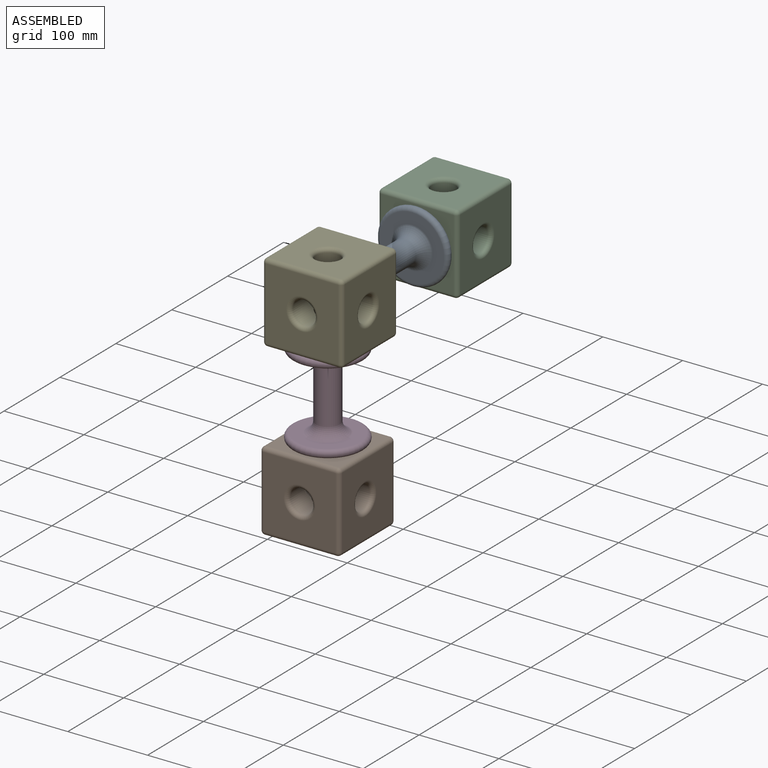
[diagram: assembled view]
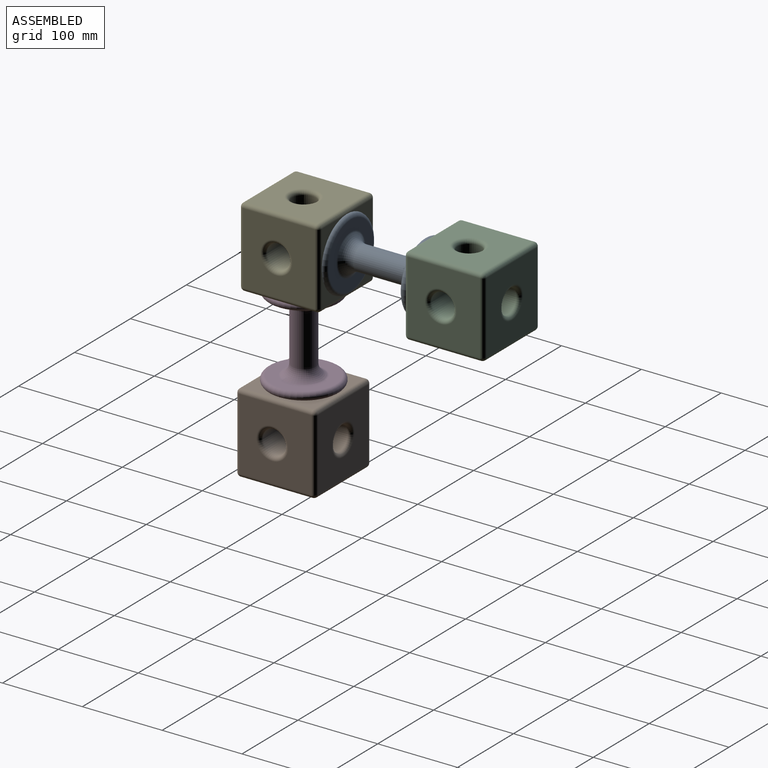
[diagram: assembled view, second angle]
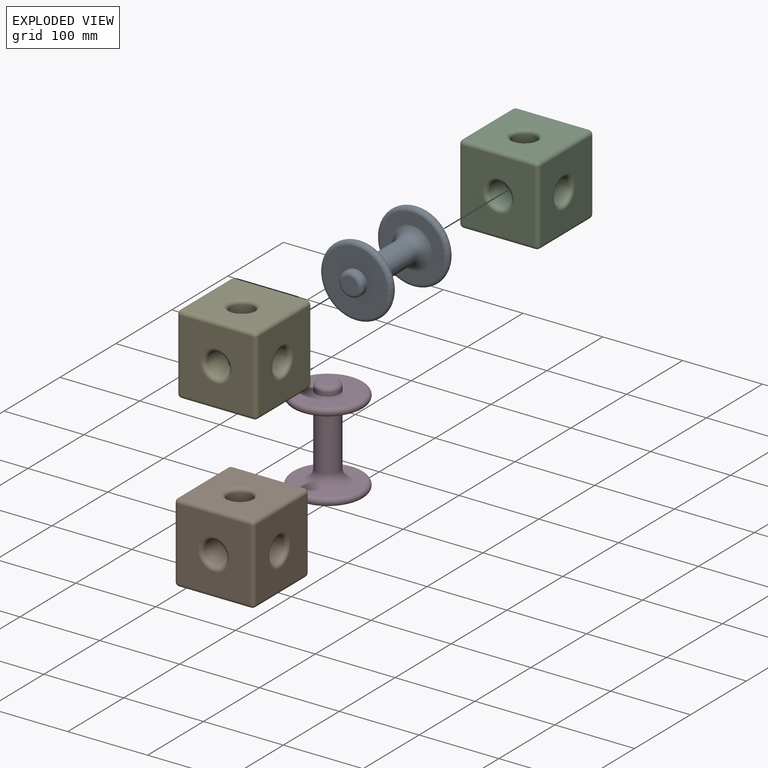
[diagram: exploded view]
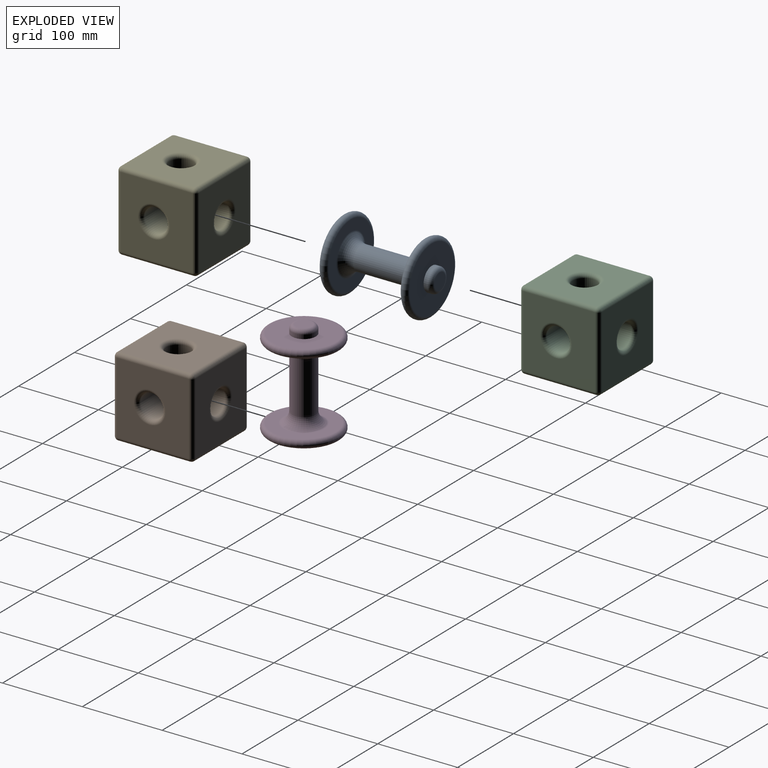
[diagram: exploded view, second angle]
ASSEMBLY  parts=5 mates=4
PART A: 19 faces, bbox 131.6x97.4x97.4 mm
  f0: plane 80x80mm, normal (-1,0,0), area 2912.2mm2, adj f6,f9
  f1: torus R=29.98mm, axis (1,0,0), area 2040.6mm2, adj f6,f7
  f2: cylinder r=15mm len=61.32mm, axis (1,0,0), area 5778.9mm2, adj f7,f16
  f3: plane 20x20mm, normal (1,0,0), area 314.2mm2, adj f8
  f4: cylinder r=15mm len=30mm, axis (1,0,0), area 471.2mm2, adj f5,f8
  f5: plane 80x80mm, normal (1,0,0), area 4319.7mm2, adj f4,f9
  f6: torus R=25.94mm, axis (-1,0,0), area 325mm2, adj f0,f1
  f7: torus R=10mm, axis (-1,0,0), area 23.1mm2, adj f1,f2
  f8: torus R=10mm, axis (-1,0,0), area 650.6mm2, adj f3,f4
  f9: torus R=40mm, axis (1,0,0), area 4262mm2, adj f0,f5
  f10: plane 80x80mm, normal (1,0,0), area 2912.2mm2, adj f15,f18
  f11: torus R=29.98mm, axis (-1,0,0), area 2040.6mm2, adj f15,f16
  f12: plane 20x20mm, normal (-1,0,0), area 314.2mm2, adj f17
  f13: cylinder r=15mm len=30mm, axis (-1,0,0), area 471.2mm2, adj f14,f17
  f14: plane 80x80mm, normal (-1,0,0), area 4319.7mm2, adj f13,f18
  f15: torus R=25.94mm, axis (1,0,0), area 325mm2, adj f10,f11
  f16: torus R=10mm, axis (1,0,0), area 23.1mm2, adj f2,f11
  f17: torus R=10mm, axis (1,0,0), area 650.6mm2, adj f12,f13
  f18: torus R=40mm, axis (-1,0,0), area 4262mm2, adj f10,f14
PART B: 38 faces, bbox 100x100x100 mm
  f0: cylinder r=15mm len=30.8mm, axis (0,-1,0), area 2628.2mm2, adj f8,f9,f10,f11,f14
  f1: plane 90x90mm, normal (1,0,0), area 6843.4mm2, adj f12,f24,f29,f32,f35
  f2: plane 90x90mm, normal (0,0,1), area 6843.4mm2, adj f21,f30,f31,f35,f36
  f3: plane 90x90mm, normal (-1,0,0), area 6843.4mm2, adj f13,f16,f20,f21,f22
  f4: plane 90x90mm, normal (0,0,-1), area 6843.4mm2, adj f16,f19,f23,f24,f37
  f5: plane 90x90mm, normal (0,-1,0), area 6843.4mm2, adj f14,f19,f20,f29,f30
  f6: plane 90x90mm, normal (0,1,0), area 6843.4mm2, adj f15,f22,f23,f31,f32
  f7: cylinder r=15mm len=38mm, axis (0,-1,0), area 3307.2mm2, adj f8,f9,f10,f11,f15
  f8: cylinder r=15mm len=34.74mm, axis (0,0,1), area 2968.8mm2, adj f0,f7,f10,f11,f36
  f9: cylinder r=15mm len=34.74mm, axis (0,0,1), area 2968.8mm2, adj f0,f7,f10,f11,f37
  f10: cylinder r=15mm len=34.74mm, axis (1,0,0), area 2968.8mm2, adj f0,f7,f8,f9,f12
  f11: cylinder r=15mm len=34.74mm, axis (1,0,0), area 2968.8mm2, adj f0,f7,f8,f9,f13
  f12: torus R=20mm, axis (1,0,0), area 829.9mm2, adj f1,f10
  f13: torus R=20mm, axis (1,0,0), area 829.9mm2, adj f3,f11
  f14: torus R=20mm, axis (0,-1,0), area 829.9mm2, adj f0,f5
  f15: torus R=20mm, axis (0,-1,0), area 829.9mm2, adj f6,f7
  f16: cylinder r=5mm len=90mm, axis (0,-1,0), area 706.9mm2, adj f3,f4,f17,f18
  f17: sphere r=5mm, area 39.3mm2, adj f16,f19,f20
  f18: sphere r=5mm, area 39.3mm2, adj f16,f22,f23
  f19: cylinder r=5mm len=90mm, axis (-1,0,0), area 706.9mm2, adj f4,f5,f17,f25
  f20: cylinder r=5mm len=90mm, axis (0,0,1), area 706.9mm2, adj f3,f5,f17,f26
  f21: cylinder r=5mm len=90mm, axis (0,1,0), area 706.9mm2, adj f2,f3,f26,f27
  f22: cylinder r=5mm len=90mm, axis (0,0,-1), area 706.9mm2, adj f3,f6,f18,f27
  f23: cylinder r=5mm len=90mm, axis (1,0,0), area 706.9mm2, adj f4,f6,f18,f28
  f24: cylinder r=5mm len=90mm, axis (0,1,0), area 706.9mm2, adj f1,f4,f25,f28
  f25: sphere r=5mm, area 39.3mm2, adj f19,f24,f29
  f26: sphere r=5mm, area 39.3mm2, adj f20,f21,f30
  f27: sphere r=5mm, area 39.3mm2, adj f21,f22,f31
  f28: sphere r=5mm, area 39.3mm2, adj f23,f24,f32
  f29: cylinder r=5mm len=90mm, axis (0,0,-1), area 706.9mm2, adj f1,f5,f25,f33
  f30: cylinder r=5mm len=90mm, axis (1,0,0), area 706.9mm2, adj f2,f5,f26,f33
  f31: cylinder r=5mm len=90mm, axis (-1,0,0), area 706.9mm2, adj f2,f6,f27,f34
  f32: cylinder r=5mm len=90mm, axis (0,0,1), area 706.9mm2, adj f1,f6,f28,f34
  f33: sphere r=5mm, area 39.3mm2, adj f29,f30,f35
  f34: sphere r=5mm, area 39.3mm2, adj f31,f32,f35
  f35: cylinder r=5mm len=90mm, axis (0,-1,0), area 706.9mm2, adj f1,f2,f33,f34
  f36: torus R=20mm, axis (0,0,-1), area 829.9mm2, adj f2,f8
  f37: torus R=20mm, axis (0,0,-1), area 829.9mm2, adj f4,f9
PART C: same geometry as B
PART D: same geometry as A
PART E: same geometry as B
PLACE A rot(axis=(0,0,1),90deg) t=(-82.17,44.58,113.54)mm
PLACE B t=(-82.17,-10.76,-98.04)mm
PLACE C t=(-82.17,200.37,113.54)mm
PLACE D rot(axis=(0,-1,0),90deg) t=(-82.17,-60.16,7.75)mm
PLACE E rot(axis=(0,-1,0),90deg) t=(-82.17,-6.21,113.54)mm
MATE fastened A.f1 <-> E.f0  axis (0,-1,0) through (-82.17,-11.21,113.54)mm
MATE fastened C.f0 <-> A.f1  axis (0,-1,0) through (-82.17,100.37,113.54)mm
MATE fastened D.f1 <-> E.f10  axis (0,0,-1) through (-82.17,-60.16,68.54)mm
MATE fastened B.f2 <-> D.f1  axis (0,0,1) through (-82.17,-60.16,-48.04)mm
